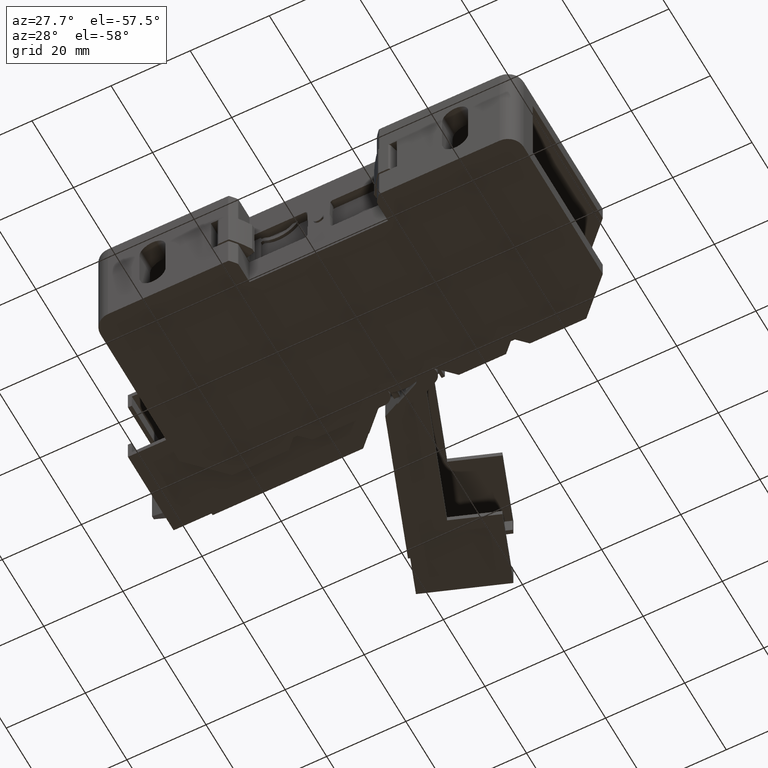
[diagram: clean part render]
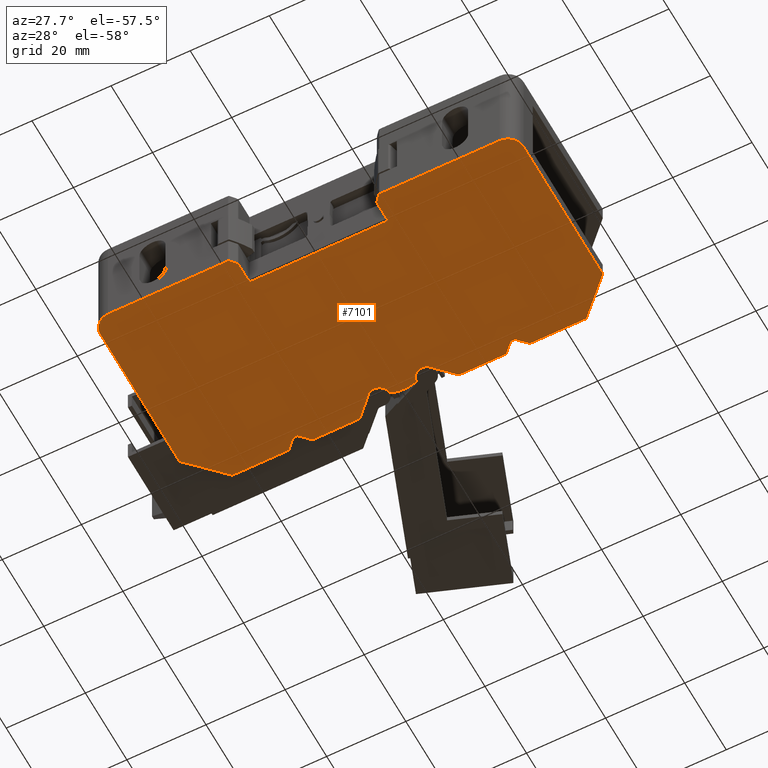
[diagram: same view with one face highlighted and labeled with its STEP entity id]
A machine part, auxiliary view. The second image highlights one B-rep face of the part: STEP entity #7101.
In plain terms, the highlighted planar face has unit normal (-0, 0, -1).
Its self-contained STEP definition (entity closure, byte-faithful):
#1283 = PLANE ( 'NONE',  #2945 ) ;
#1301 = DIRECTION ( 'NONE',  ( -3.797643038629970400E-015, 0.0000000000000000000, -1.000000000000000000 ) ) ;
#1315 = DIRECTION ( 'NONE',  ( -1.000000000000000000, 0.0000000000000000000, 3.797643038629970400E-015 ) ) ;
#1326 = CARTESIAN_POINT ( 'NONE',  ( -53.74999984790740400, 25.69999999999999900, -3.590877595271990200E-013 ) ) ;
#1330 = FACE_OUTER_BOUND ( 'NONE', #11195, .T. ) ;
#1756 = CARTESIAN_POINT ( 'NONE',  ( -43.75000000000002800, 23.00000000000000000, -3.261280134836397300E-013 ) ) ;
#1758 = LINE ( 'NONE', #1756, #3134 ) ;
#1784 = DIRECTION ( 'NONE',  ( -1.000000000000000000, -0.0000000000000000000, 0.0000000000000000000 ) ) ;
#1855 = CARTESIAN_POINT ( 'NONE',  ( 43.75000000000002800, 23.00000000000000000, -4.649058915617843000E-013 ) ) ;
#1866 = LINE ( 'NONE', #1855, #3199 ) ;
#1872 = DIRECTION ( 'NONE',  ( -1.000000000000000000, -0.0000000000000000000, 0.0000000000000000000 ) ) ;
#2233 = EDGE_CURVE ( 'NONE', #13301, #13225, #4823, .T. ) ;
#2241 = EDGE_CURVE ( 'NONE', #13096, #13157, #4816, .T. ) ;
#2248 = EDGE_CURVE ( 'NONE', #13015, #13309, #11643, .T. ) ;
#2250 = EDGE_CURVE ( 'NONE', #12926, #13223, #11648, .T. ) ;
#2256 = EDGE_CURVE ( 'NONE', #13084, #13301, #4803, .T. ) ;
#2258 = EDGE_CURVE ( 'NONE', #13194, #13024, #4810, .T. ) ;
#2262 = EDGE_CURVE ( 'NONE', #13268, #13256, #11688, .T. ) ;
#2266 = EDGE_CURVE ( 'NONE', #13309, #13311, #11721, .T. ) ;
#2274 = EDGE_CURVE ( 'NONE', #13285, #13222, #6229, .T. ) ;
#2280 = EDGE_CURVE ( 'NONE', #13223, #13267, #6254, .T. ) ;
#2282 = EDGE_CURVE ( 'NONE', #13311, #12892, #6248, .T. ) ;
#2288 = EDGE_CURVE ( 'NONE', #13267, #13088, #6268, .T. ) ;
#2292 = EDGE_CURVE ( 'NONE', #12904, #13285, #6289, .T. ) ;
#2426 = EDGE_CURVE ( 'NONE', #13108, #13024, #4623, .T. ) ;
#2436 = EDGE_CURVE ( 'NONE', #13096, #13088, #4645, .T. ) ;
#2446 = EDGE_CURVE ( 'NONE', #13015, #13125, #4705, .T. ) ;
#2456 = EDGE_CURVE ( 'NONE', #13084, #13037, #4708, .T. ) ;
#2479 = EDGE_CURVE ( 'NONE', #13157, #13185, #6190, .T. ) ;
#2540 = EDGE_CURVE ( 'NONE', #13242, #13133, #3905, .T. ) ;
#2945 = AXIS2_PLACEMENT_3D ( 'NONE', #1326, #1301, #1315 ) ;
#3134 = VECTOR ( 'NONE', #1784, 1000.000000000000000 ) ;
#3199 = VECTOR ( 'NONE', #1872, 1000.000000000000000 ) ;
#3905 = LINE ( 'NONE', #3916, #4779 ) ;
#3916 = CARTESIAN_POINT ( 'NONE',  ( 3.175546716161680400, 22.80072382815009700, 7.806255641895631900E-015 ) ) ;
#3917 = DIRECTION ( 'NONE',  ( 0.3420201433256733800, -0.9396926207859066500, 0.0000000000000000000 ) ) ;
#4481 = VECTOR ( 'NONE', #6267, 1000.000000000000100 ) ;
#4623 = CIRCLE ( 'NONE', #4641, 0.5000000000000004400 ) ;
#4641 = AXIS2_PLACEMENT_3D ( 'NONE', #6693, #6695, #6678 ) ;
#4645 = CIRCLE ( 'NONE', #4657, 5.000000000000000000 ) ;
#4657 = AXIS2_PLACEMENT_3D ( 'NONE', #6740, #6713, #6746 ) ;
#4673 = VECTOR ( 'NONE', #6198, 1000.000000000000100 ) ;
#4702 = AXIS2_PLACEMENT_3D ( 'NONE', #6768, #6795, #6769 ) ;
#4705 = CIRCLE ( 'NONE', #4706, 4.999999999999999100 ) ;
#4706 = AXIS2_PLACEMENT_3D ( 'NONE', #6796, #6762, #6777 ) ;
#4708 = CIRCLE ( 'NONE', #4702, 0.5000000000000004400 ) ;
#4779 = VECTOR ( 'NONE', #3917, 1000.000000000000100 ) ;
#4803 = CIRCLE ( 'NONE', #4804, 29.89999999999999900 ) ;
#4804 = AXIS2_PLACEMENT_3D ( 'NONE', #11657, #11658, #11683 ) ;
#4806 = VECTOR ( 'NONE', #11642, 1000.000000000000200 ) ;
#4809 = VECTOR ( 'NONE', #11715, 1000.000000000000000 ) ;
#4810 = CIRCLE ( 'NONE', #4813, 29.90000000000000200 ) ;
#4813 = AXIS2_PLACEMENT_3D ( 'NONE', #11716, #11698, #11691 ) ;
#4816 = CIRCLE ( 'NONE', #4841, 2.549999997955664900 ) ;
#4818 = VECTOR ( 'NONE', #11684, 1000.000000000000000 ) ;
#4823 = CIRCLE ( 'NONE', #4849, 0.5000000000000004400 ) ;
#4836 = VECTOR ( 'NONE', #6239, 1000.000000000000000 ) ;
#4841 = AXIS2_PLACEMENT_3D ( 'NONE', #11597, #11609, #11641 ) ;
#4844 = VECTOR ( 'NONE', #11644, 999.9999999999998900 ) ;
#4849 = AXIS2_PLACEMENT_3D ( 'NONE', #11625, #11618, #11633 ) ;
#4859 = VECTOR ( 'NONE', #6265, 1000.000000000000000 ) ;
#4872 = VECTOR ( 'NONE', #6266, 999.9999999999998900 ) ;
#4873 = VECTOR ( 'NONE', #6241, 1000.000000000000000 ) ;
#6190 = LINE ( 'NONE', #6195, #4673 ) ;
#6195 = CARTESIAN_POINT ( 'NONE',  ( -3.175546716161680400, 22.80072382815009700, -2.732189474663471200E-013 ) ) ;
#6198 = DIRECTION ( 'NONE',  ( 0.3420201433256733800, 0.9396926207859066500, 0.0000000000000000000 ) ) ;
#6229 = LINE ( 'NONE', #6250, #4836 ) ;
#6239 = DIRECTION ( 'NONE',  ( 1.000000000000000000, -0.0000000000000000000, -3.797643038629970400E-015 ) ) ;
#6241 = DIRECTION ( 'NONE',  ( 1.000000000000000000, -0.0000000000000000000, -3.797643038629970400E-015 ) ) ;
#6242 = CARTESIAN_POINT ( 'NONE',  ( 24.46076951545876500, 25.50000000000000400, -6.561043433458807500E-013 ) ) ;
#6246 = CARTESIAN_POINT ( 'NONE',  ( -53.74999984790740400, 25.50000000000259000, -3.590877595271990200E-013 ) ) ;
#6248 = LINE ( 'NONE', #6242, #4859 ) ;
#6250 = CARTESIAN_POINT ( 'NONE',  ( -53.74999984790740400, 25.50000000000000400, -3.590877595271990200E-013 ) ) ;
#6254 = LINE ( 'NONE', #6246, #4873 ) ;
#6262 = CARTESIAN_POINT ( 'NONE',  ( 27.99999999998818700, 23.00000000000000400, -6.695450773575607700E-013 ) ) ;
#6265 = DIRECTION ( 'NONE',  ( 0.7071067811865382500, -0.7071067811865569000, -2.685339145141097400E-015 ) ) ;
#6266 = DIRECTION ( 'NONE',  ( 0.7071067811878506400, -0.7071067811852445000, -2.685339145146091600E-015 ) ) ;
#6267 = DIRECTION ( 'NONE',  ( 0.7071067811882177900, 0.7071067811848772400, -2.685339145147489100E-015 ) ) ;
#6268 = LINE ( 'NONE', #6297, #4872 ) ;
#6289 = LINE ( 'NONE', #6262, #4481 ) ;
#6297 = CARTESIAN_POINT ( 'NONE',  ( -12.53923048383650300, 25.49999999997401900, -5.155915509192481900E-013 ) ) ;
#6678 = DIRECTION ( 'NONE',  ( 1.000000000000000000, 0.0000000000000000000, -3.771137991253908200E-015 ) ) ;
#6693 = CARTESIAN_POINT ( 'NONE',  ( 18.00000015268923200, -23.34465240872928100, -6.314393452555577800E-013 ) ) ;
#6695 = DIRECTION ( 'NONE',  ( 3.771137991253930200E-015, -3.491483361109380100E-015, 1.000000000000000000 ) ) ;
#6713 = DIRECTION ( 'NONE',  ( 0.0000000000000000000, 0.0000000000000000000, 1.000000000000000000 ) ) ;
#6740 = CARTESIAN_POINT ( 'NONE',  ( -11.91669305638946400, 17.80639476065940800, 0.0000000000000000000 ) ) ;
#6746 = DIRECTION ( 'NONE',  ( 1.000000000000000000, 0.0000000000000000000, 0.0000000000000000000 ) ) ;
#6762 = DIRECTION ( 'NONE',  ( 0.0000000000000000000, 0.0000000000000000000, 1.000000000000000000 ) ) ;
#6768 = CARTESIAN_POINT ( 'NONE',  ( -17.99999984731109100, -23.34465241645157000, -4.753142324176451400E-013 ) ) ;
#6769 = DIRECTION ( 'NONE',  ( 1.000000000000000000, 0.0000000000000000000, -3.771137991253908200E-015 ) ) ;
#6777 = DIRECTION ( 'NONE',  ( 1.000000000000000000, 0.0000000000000000000, 0.0000000000000000000 ) ) ;
#6795 = DIRECTION ( 'NONE',  ( 3.771137991253930200E-015, -3.491483361109380100E-015, 1.000000000000000000 ) ) ;
#6796 = CARTESIAN_POINT ( 'NONE',  ( 11.91669305638943900, 17.80639476065940800, 0.0000000000000000000 ) ) ;
#7101 = ADVANCED_FACE ( 'NONE', ( #1330 ), #1283, .T. ) ;
#7257 = EDGE_CURVE ( 'NONE', #12926, #12897, #1758, .T. ) ;
#7293 = EDGE_CURVE ( 'NONE', #12904, #12892, #1866, .T. ) ;
#8228 = CARTESIAN_POINT ( 'NONE',  ( 53.50000000000001400, 16.75000000000000400, -6.151276589667479800E-013 ) ) ;
#8238 = CARTESIAN_POINT ( 'NONE',  ( -18.83545711861587400, -25.13179031345088500, -2.419260700689219800E-013 ) ) ;
#8239 = CARTESIAN_POINT ( 'NONE',  ( 24.46076951545876100, 25.50000000000000400, -6.185778466510178700E-013 ) ) ;
#8270 = CARTESIAN_POINT ( 'NONE',  ( -53.50000000000000000, 16.75000000000000000, -1.778365057689812800E-013 ) ) ;
#8277 = CARTESIAN_POINT ( 'NONE',  ( 30.50000000000000000, 25.50000000000000400, -6.787850830050975900E-013 ) ) ;
#8281 = CARTESIAN_POINT ( 'NONE',  ( -17.49999984731118000, -18.09999952316306000, -5.853871877463205800E-013 ) ) ;
#8282 = CARTESIAN_POINT ( 'NONE',  ( 12.53923048386455700, 25.50000000000000400, -6.107612836031396600E-013 ) ) ;
#8285 = CARTESIAN_POINT ( 'NONE',  ( 17.50000015268919600, -18.09999952316306000, -6.296930231970040000E-013 ) ) ;
#8301 = CARTESIAN_POINT ( 'NONE',  ( -49.50000000000000000, -25.29999999999999000, -1.344410693882025700E-014 ) ) ;
#8318 = CARTESIAN_POINT ( 'NONE',  ( 53.50000000000000000, -21.29999999999999400, -5.416674053737580200E-013 ) ) ;
#8754 = LINE ( 'NONE', #8874, #14484 ) ;
#8799 = CARTESIAN_POINT ( 'NONE',  ( 44.74999999999998600, 25.50000000000000700, -7.331555982546576500E-013 ) ) ;
#8803 = CARTESIAN_POINT ( 'NONE',  ( 6.000000000396700500, 22.49630342184860900, 3.469446951953614200E-015 ) ) ;
#8813 = DIRECTION ( 'NONE',  ( 1.000000000000000000, 0.0000000000000000000, 0.0000000000000000000 ) ) ;
#8862 = LINE ( 'NONE', #8799, #14558 ) ;
#8868 = DIRECTION ( 'NONE',  ( 0.7071067811865451300, -0.7071067811865500200, -2.685339145141143100E-015 ) ) ;
#8870 = DIRECTION ( 'NONE',  ( 0.7071067811865487900, -0.7071067811865463500, -2.685339145141150600E-015 ) ) ;
#8874 = CARTESIAN_POINT ( 'NONE',  ( -30.49999999999999300, 25.50000000000000700, -4.473829595977524600E-013 ) ) ;
#8886 = DIRECTION ( 'NONE',  ( 0.0000000000000000000, 0.0000000000000000000, 1.000000000000000000 ) ) ;
#8904 = CARTESIAN_POINT ( 'NONE',  ( -53.50000000000000000, 16.75000000000000000, -3.600371697092631200E-013 ) ) ;
#8948 = CARTESIAN_POINT ( 'NONE',  ( 19.20950981694255700, -24.79999999999999000, -6.366435156834882000E-013 ) ) ;
#8957 = DIRECTION ( 'NONE',  ( 1.000000000000000000, 0.0000000000000000000, -3.771137991253908200E-015 ) ) ;
#8966 = DIRECTION ( 'NONE',  ( -3.771137991253930200E-015, 3.491483361109380100E-015, -1.000000000000000000 ) ) ;
#8987 = LINE ( 'NONE', #8904, #14560 ) ;
#8991 = DIRECTION ( 'NONE',  ( 0.7071067811865476800, 0.7071067811865474600, -2.685339145141138400E-015 ) ) ;
#9012 = LINE ( 'NONE', #9032, #14550 ) ;
#9023 = DIRECTION ( 'NONE',  ( -0.0000000000000000000, -1.000000000000000000, -0.0000000000000000000 ) ) ;
#9032 = CARTESIAN_POINT ( 'NONE',  ( 17.50000015268919600, 25.69999999999999900, -6.296698260318500400E-013 ) ) ;
#9045 = DIRECTION ( 'NONE',  ( 0.0000000000000000000, 1.000000000000000000, 0.0000000000000000000 ) ) ;
#9054 = LINE ( 'NONE', #9060, #14573 ) ;
#9060 = CARTESIAN_POINT ( 'NONE',  ( -17.49999984731118000, 25.69999999999999900, -4.967523196797996800E-013 ) ) ;
#9336 = CARTESIAN_POINT ( 'NONE',  ( 3.015162436188435300, 22.19506481017515000, 6.938893903907228400E-015 ) ) ;
#9362 = DIRECTION ( 'NONE',  ( 1.000000000000000000, 6.938893903907228400E-014, 0.0000000000000000000 ) ) ;
#9421 = DIRECTION ( 'NONE',  ( -0.0000000000000000000, -0.0000000000000000000, -1.000000000000000000 ) ) ;
#9484 = DIRECTION ( 'NONE',  ( 1.000000000000000000, 4.163336342344337000E-014, 0.0000000000000000000 ) ) ;
#9499 = DIRECTION ( 'NONE',  ( -0.0000000000000000000, -0.0000000000000000000, -1.000000000000000000 ) ) ;
#9531 = CARTESIAN_POINT ( 'NONE',  ( -3.015162436188435300, 22.19506481017515000, 3.469446951953614200E-015 ) ) ;
#9644 = CARTESIAN_POINT ( 'NONE',  ( 49.50000000000000000, -21.29999999999999000, -5.438358097187290200E-013 ) ) ;
#9663 = CARTESIAN_POINT ( 'NONE',  ( 22.15000015208890000, -25.29999999999999000, -6.362098348144940000E-013 ) ) ;
#9671 = DIRECTION ( 'NONE',  ( 1.000000000000000000, -1.325940748080940300E-029, -4.629500059741527000E-044 ) ) ;
#9679 = LINE ( 'NONE', #9738, #14710 ) ;
#9693 = DIRECTION ( 'NONE',  ( 1.000000000000000000, -1.325940748080940300E-029, -4.629500059741527000E-044 ) ) ;
#9697 = DIRECTION ( 'NONE',  ( -5.768341097617960000E-031, -3.469446951953615000E-015, 1.000000000000000000 ) ) ;
#9708 = DIRECTION ( 'NONE',  ( 0.0000000000000000000, 1.000000000000000000, 3.469446951953614200E-015 ) ) ;
#9732 = LINE ( 'NONE', #9663, #14704 ) ;
#9738 = CARTESIAN_POINT ( 'NONE',  ( -22.14999984791530000, -25.29999999999999000, -1.301042606982605300E-014 ) ) ;
#9743 = DIRECTION ( 'NONE',  ( 0.0000000000000000000, 1.000000000000000000, 0.0000000000000000000 ) ) ;
#9771 = LINE ( 'NONE', #9811, #14722 ) ;
#9793 = CARTESIAN_POINT ( 'NONE',  ( -17.74999984731109800, -18.09999952316306000, -6.297046217795809800E-013 ) ) ;
#9798 = DIRECTION ( 'NONE',  ( -1.000000000000000000, -8.512549969726455200E-044, 2.972142657991207600E-058 ) ) ;
#9808 = LINE ( 'NONE', #9793, #14717 ) ;
#9811 = CARTESIAN_POINT ( 'NONE',  ( -53.50000000000000000, -25.50000000000000400, 0.0000000000000000000 ) ) ;
#9829 = CARTESIAN_POINT ( 'NONE',  ( -3.385912357199004800E-006, 13.18624602514384500, 5.204170427930421300E-015 ) ) ;
#9843 = DIRECTION ( 'NONE',  ( 1.000000000000000000, 0.0000000000000000000, 0.0000000000000000000 ) ) ;
#9849 = CARTESIAN_POINT ( 'NONE',  ( 53.50000000000000000, -25.50000000000000400, -5.394990010287870100E-013 ) ) ;
#9855 = CARTESIAN_POINT ( 'NONE',  ( -49.50000000000000000, -21.29999999999999000, 0.0000000000000000000 ) ) ;
#9868 = DIRECTION ( 'NONE',  ( 0.0000000000000000000, -1.000000000000000000, -3.469446951953615000E-015 ) ) ;
#9869 = DIRECTION ( 'NONE',  ( -1.652117596168390000E-016, -1.000000000000000000, 0.0000000000000000000 ) ) ;
#9875 = LINE ( 'NONE', #9849, #14687 ) ;
#9883 = DIRECTION ( 'NONE',  ( 0.0000000000000000000, 0.0000000000000000000, 1.000000000000000000 ) ) ;
#9887 = DIRECTION ( 'NONE',  ( 0.0000000000000000000, -3.469446951953615000E-015, 1.000000000000000000 ) ) ;
#10651 = ORIENTED_EDGE ( 'NONE', *, *, #2262, .T. ) ;
#10653 = ORIENTED_EDGE ( 'NONE', *, *, #2456, .F. ) ;
#10657 = ORIENTED_EDGE ( 'NONE', *, *, #7257, .F. ) ;
#10658 = ORIENTED_EDGE ( 'NONE', *, *, #2436, .F. ) ;
#10667 = ORIENTED_EDGE ( 'NONE', *, *, #15072, .T. ) ;
#10670 = ORIENTED_EDGE ( 'NONE', *, *, #15055, .F. ) ;
#10671 = ORIENTED_EDGE ( 'NONE', *, *, #2266, .T. ) ;
#10673 = ORIENTED_EDGE ( 'NONE', *, *, #2258, .T. ) ;
#10675 = ORIENTED_EDGE ( 'NONE', *, *, #2250, .T. ) ;
#10677 = ORIENTED_EDGE ( 'NONE', *, *, #2280, .T. ) ;
#10678 = ORIENTED_EDGE ( 'NONE', *, *, #2479, .T. ) ;
#10681 = ORIENTED_EDGE ( 'NONE', *, *, #14952, .T. ) ;
#10683 = ORIENTED_EDGE ( 'NONE', *, *, #2292, .T. ) ;
#10684 = ORIENTED_EDGE ( 'NONE', *, *, #15047, .F. ) ;
#10685 = ORIENTED_EDGE ( 'NONE', *, *, #15074, .F. ) ;
#10686 = ORIENTED_EDGE ( 'NONE', *, *, #14934, .T. ) ;
#10689 = ORIENTED_EDGE ( 'NONE', *, *, #2233, .T. ) ;
#10691 = ORIENTED_EDGE ( 'NONE', *, *, #2256, .T. ) ;
#10692 = ORIENTED_EDGE ( 'NONE', *, *, #15025, .T. ) ;
#10693 = ORIENTED_EDGE ( 'NONE', *, *, #2248, .T. ) ;
#10696 = ORIENTED_EDGE ( 'NONE', *, *, #14924, .T. ) ;
#10702 = ORIENTED_EDGE ( 'NONE', *, *, #2274, .T. ) ;
#10703 = ORIENTED_EDGE ( 'NONE', *, *, #14950, .T. ) ;
#10706 = ORIENTED_EDGE ( 'NONE', *, *, #2446, .F. ) ;
#10707 = ORIENTED_EDGE ( 'NONE', *, *, #15081, .T. ) ;
#10718 = ORIENTED_EDGE ( 'NONE', *, *, #7293, .F. ) ;
#10722 = ORIENTED_EDGE ( 'NONE', *, *, #2426, .F. ) ;
#10723 = ORIENTED_EDGE ( 'NONE', *, *, #15052, .F. ) ;
#10728 = ORIENTED_EDGE ( 'NONE', *, *, #15080, .F. ) ;
#10729 = ORIENTED_EDGE ( 'NONE', *, *, #15066, .T. ) ;
#10730 = ORIENTED_EDGE ( 'NONE', *, *, #2288, .T. ) ;
#10731 = ORIENTED_EDGE ( 'NONE', *, *, #2282, .T. ) ;
#10735 = ORIENTED_EDGE ( 'NONE', *, *, #2540, .T. ) ;
#10740 = ORIENTED_EDGE ( 'NONE', *, *, #14940, .T. ) ;
#10746 = ORIENTED_EDGE ( 'NONE', *, *, #14959, .T. ) ;
#10758 = ORIENTED_EDGE ( 'NONE', *, *, #14926, .T. ) ;
#10759 = ORIENTED_EDGE ( 'NONE', *, *, #2241, .T. ) ;
#10775 = ORIENTED_EDGE ( 'NONE', *, *, #15010, .T. ) ;
#11195 = EDGE_LOOP ( 'NONE', ( #10746, #10667, #10681, #10653, #10691, #10689, #10684, #10728, #10729, #10740, #10651, #10696, #10657, #10675, #10677, #10730, #10658, #10759, #10678, #10692, #10685, #10775, #10735, #10758, #10706, #10693, #10671, #10731, #10718, #10683, #10702, #10686, #10707, #10670, #10723, #10703, #10673, #10722 ) ) ;
#11597 = CARTESIAN_POINT ( 'NONE',  ( -6.000000000396700500, 22.49630342184860900, 0.0000000000000000000 ) ) ;
#11609 = DIRECTION ( 'NONE',  ( 0.0000000000000000000, 0.0000000000000000000, 1.000000000000000000 ) ) ;
#11618 = DIRECTION ( 'NONE',  ( -3.771137991253930200E-015, 3.491483361109380100E-015, -1.000000000000000000 ) ) ;
#11625 = CARTESIAN_POINT ( 'NONE',  ( -19.20950950518780700, -24.79999999999999000, -1.040834085586084300E-014 ) ) ;
#11633 = DIRECTION ( 'NONE',  ( 1.000000000000000000, 6.938893903907222100E-015, -3.771137991253901900E-015 ) ) ;
#11641 = DIRECTION ( 'NONE',  ( 1.000000000000000000, 0.0000000000000000000, 0.0000000000000000000 ) ) ;
#11642 = DIRECTION ( 'NONE',  ( 0.7071067811869424800, 0.7071067811861525600, -2.685339145142638400E-015 ) ) ;
#11643 = LINE ( 'NONE', #11659, #4844 ) ;
#11644 = DIRECTION ( 'NONE',  ( 0.7071067811880261700, 0.7071067811850689800, -2.685339145146741300E-015 ) ) ;
#11648 = LINE ( 'NONE', #11674, #4806 ) ;
#11657 = CARTESIAN_POINT ( 'NONE',  ( -41.20378983561742800, -5.290729569087488000, -3.243932900076629300E-013 ) ) ;
#11658 = DIRECTION ( 'NONE',  ( -3.771137991253930200E-015, 3.491483361109380100E-015, -1.000000000000000000 ) ) ;
#11659 = CARTESIAN_POINT ( 'NONE',  ( 8.381159148247634900, 21.34192866440047000, -5.950397229709590800E-013 ) ) ;
#11674 = CARTESIAN_POINT ( 'NONE',  ( -26.96076951544147700, 23.00000000000000400, -4.608236936095431400E-013 ) ) ;
#11683 = DIRECTION ( 'NONE',  ( 1.000000000000000000, 0.0000000000000000000, -3.771137991253930200E-015 ) ) ;
#11684 = DIRECTION ( 'NONE',  ( 1.000000000000000000, -0.0000000000000000000, -3.797643038629970400E-015 ) ) ;
#11688 = LINE ( 'NONE', #11701, #4809 ) ;
#11691 = DIRECTION ( 'NONE',  ( 1.000000000000000000, -1.688309469930604600E-014, -3.771137991253987800E-015 ) ) ;
#11698 = DIRECTION ( 'NONE',  ( -3.771137991253930200E-015, 3.491483361109380100E-015, -1.000000000000000000 ) ) ;
#11701 = CARTESIAN_POINT ( 'NONE',  ( -53.74999984790740400, 25.50000000000000400, -3.590877595271990200E-013 ) ) ;
#11706 = CARTESIAN_POINT ( 'NONE',  ( -53.74999984790740400, 25.50000000000000400, -3.590877595271990200E-013 ) ) ;
#11715 = DIRECTION ( 'NONE',  ( 1.000000000000000000, -0.0000000000000000000, -3.797643038629970400E-015 ) ) ;
#11716 = CARTESIAN_POINT ( 'NONE',  ( 41.20379014437452300, -5.290729565708008200, -6.522560269672794700E-013 ) ) ;
#11721 = LINE ( 'NONE', #11706, #4818 ) ;
#12089 = VERTEX_POINT ( 'NONE', #14066 ) ;
#12095 = VERTEX_POINT ( 'NONE', #14087 ) ;
#12096 = VERTEX_POINT ( 'NONE', #14067 ) ;
#12106 = VERTEX_POINT ( 'NONE', #14055 ) ;
#12892 = VERTEX_POINT ( 'NONE', #14148 ) ;
#12897 = VERTEX_POINT ( 'NONE', #14154 ) ;
#12904 = VERTEX_POINT ( 'NONE', #14144 ) ;
#12926 = VERTEX_POINT ( 'NONE', #14134 ) ;
#13015 = VERTEX_POINT ( 'NONE', #14224 ) ;
#13024 = VERTEX_POINT ( 'NONE', #14244 ) ;
#13037 = VERTEX_POINT ( 'NONE', #14248 ) ;
#13084 = VERTEX_POINT ( 'NONE', #14341 ) ;
#13088 = VERTEX_POINT ( 'NONE', #14303 ) ;
#13096 = VERTEX_POINT ( 'NONE', #14331 ) ;
#13108 = VERTEX_POINT ( 'NONE', #14350 ) ;
#13125 = VERTEX_POINT ( 'NONE', #14328 ) ;
#13133 = VERTEX_POINT ( 'NONE', #14340 ) ;
#13157 = VERTEX_POINT ( 'NONE', #14399 ) ;
#13185 = VERTEX_POINT ( 'NONE', #14380 ) ;
#13194 = VERTEX_POINT ( 'NONE', #14395 ) ;
#13222 = VERTEX_POINT ( 'NONE', #14436 ) ;
#13223 = VERTEX_POINT ( 'NONE', #14454 ) ;
#13225 = VERTEX_POINT ( 'NONE', #14447 ) ;
#13242 = VERTEX_POINT ( 'NONE', #14465 ) ;
#13256 = VERTEX_POINT ( 'NONE', #14434 ) ;
#13257 = VERTEX_POINT ( 'NONE', #14448 ) ;
#13267 = VERTEX_POINT ( 'NONE', #14440 ) ;
#13268 = VERTEX_POINT ( 'NONE', #14455 ) ;
#13285 = VERTEX_POINT ( 'NONE', #8277 ) ;
#13287 = VERTEX_POINT ( 'NONE', #8270 ) ;
#13294 = VERTEX_POINT ( 'NONE', #8228 ) ;
#13301 = VERTEX_POINT ( 'NONE', #8238 ) ;
#13304 = VERTEX_POINT ( 'NONE', #8281 ) ;
#13309 = VERTEX_POINT ( 'NONE', #8282 ) ;
#13311 = VERTEX_POINT ( 'NONE', #8239 ) ;
#13316 = VERTEX_POINT ( 'NONE', #8285 ) ;
#13340 = VERTEX_POINT ( 'NONE', #8301 ) ;
#13341 = VERTEX_POINT ( 'NONE', #8318 ) ;
#14055 = CARTESIAN_POINT ( 'NONE',  ( 3.173854995963758100, 22.66921204135307000, 6.117182773379701000E-015 ) ) ;
#14066 = CARTESIAN_POINT ( 'NONE',  ( -53.50000000000000700, -21.29999999999998600, 0.0000000000000000000 ) ) ;
#14067 = CARTESIAN_POINT ( 'NONE',  ( 49.50000000000000000, -25.29999999999999000, -5.969617161705187400E-013 ) ) ;
#14087 = CARTESIAN_POINT ( 'NONE',  ( -3.173855017781920900, 22.66921316728208400, 4.291158072153152900E-015 ) ) ;
#14134 = CARTESIAN_POINT ( 'NONE',  ( -26.96076951543985300, 22.99999999999999600, -3.710265735256075400E-013 ) ) ;
#14144 = CARTESIAN_POINT ( 'NONE',  ( 27.99999999998556900, 23.00000000000000400, -5.331189534937097600E-013 ) ) ;
#14148 = CARTESIAN_POINT ( 'NONE',  ( 26.96076951545870100, 23.00000000000000400, -5.318034113553413400E-013 ) ) ;
#14154 = CARTESIAN_POINT ( 'NONE',  ( -28.00000000000000000, 23.00000000000000000, -3.261280134836397300E-013 ) ) ;
#14224 = CARTESIAN_POINT ( 'NONE',  ( 8.381159148104615000, 21.34192866424875800, 0.0000000000000000000 ) ) ;
#14244 = CARTESIAN_POINT ( 'NONE',  ( 17.60537787391907100, -23.65169191286229400, -6.295276091799915400E-013 ) ) ;
#14248 = CARTESIAN_POINT ( 'NONE',  ( -17.49999984731118000, -23.34465241645156700, -4.867452863991026000E-013 ) ) ;
#14303 = CARTESIAN_POINT ( 'NONE',  ( -8.381159150480913300, 21.34192866662505800, 0.0000000000000000000 ) ) ;
#14328 = CARTESIAN_POINT ( 'NONE',  ( 7.998353283147834800, 20.91229453712239200, 1.148823494335449300E-015 ) ) ;
#14331 = CARTESIAN_POINT ( 'NONE',  ( -7.998353283147845400, 20.91229453712239200, 0.0000000000000000000 ) ) ;
#14340 = CARTESIAN_POINT ( 'NONE',  ( 3.603783819313681300, 21.62415205706734500, 3.469446951953614200E-015 ) ) ;
#14341 = CARTESIAN_POINT ( 'NONE',  ( -17.60537756859839600, -23.65169192065844000, -4.774649355026571900E-013 ) ) ;
#14350 = CARTESIAN_POINT ( 'NONE',  ( 17.50000015268919600, -23.34465240872929600, -6.296291990197557900E-013 ) ) ;
#14380 = CARTESIAN_POINT ( 'NONE',  ( -3.232008933683780100, 22.64559516045579100, -1.346579098226996500E-013 ) ) ;
#14395 = CARTESIAN_POINT ( 'NONE',  ( 18.83545743042160600, -25.13179031350835800, -6.365107562337960800E-013 ) ) ;
#14399 = CARTESIAN_POINT ( 'NONE',  ( -3.603783819313683100, 21.62415205706734500, -1.366094737331735600E-013 ) ) ;
#14434 = CARTESIAN_POINT ( 'NONE',  ( -30.49999999999999300, 25.50000000000000700, -4.069655712499924000E-013 ) ) ;
#14436 = CARTESIAN_POINT ( 'NONE',  ( 44.75000000000000700, 25.50000000000000000, -7.333664089491683700E-013 ) ) ;
#14440 = CARTESIAN_POINT ( 'NONE',  ( -12.53923048383313000, 25.49999999996995800, -5.155014648068798100E-013 ) ) ;
#14447 = CARTESIAN_POINT ( 'NONE',  ( -19.20950950518780700, -25.29999999999999000, -1.257674520083185100E-014 ) ) ;
#14448 = CARTESIAN_POINT ( 'NONE',  ( 19.20950981694257500, -25.29999999999999000, -6.372995460892684500E-013 ) ) ;
#14454 = CARTESIAN_POINT ( 'NONE',  ( -24.46076951543793500, 25.50000000000173000, -4.702485548006638700E-013 ) ) ;
#14455 = CARTESIAN_POINT ( 'NONE',  ( -44.74999999999999300, 25.50000000000000400, -3.934384405470953700E-013 ) ) ;
#14465 = CARTESIAN_POINT ( 'NONE',  ( 3.232008933683780900, 22.64559516045579100, 6.938893903907228400E-015 ) ) ;
#14484 = VECTOR ( 'NONE', #8868, 1000.000000000000100 ) ;
#14502 = CIRCLE ( 'NONE', #14503, 2.549999997955664900 ) ;
#14503 = AXIS2_PLACEMENT_3D ( 'NONE', #8803, #8886, #8813 ) ;
#14550 = VECTOR ( 'NONE', #9045, 1000.000000000000000 ) ;
#14558 = VECTOR ( 'NONE', #8870, 1000.000000000000000 ) ;
#14560 = VECTOR ( 'NONE', #8991, 1000.000000000000000 ) ;
#14573 = VECTOR ( 'NONE', #9023, 1000.000000000000000 ) ;
#14582 = AXIS2_PLACEMENT_3D ( 'NONE', #8948, #8966, #8957 ) ;
#14595 = CIRCLE ( 'NONE', #14582, 0.5000000000000004400 ) ;
#14618 = CIRCLE ( 'NONE', #14663, 0.5000000000000000000 ) ;
#14619 = CIRCLE ( 'NONE', #14625, 0.5000000000000000000 ) ;
#14625 = AXIS2_PLACEMENT_3D ( 'NONE', #9336, #9421, #9362 ) ;
#14663 = AXIS2_PLACEMENT_3D ( 'NONE', #9531, #9499, #9484 ) ;
#14670 = CIRCLE ( 'NONE', #14692, 9.999999999999740700 ) ;
#14677 = AXIS2_PLACEMENT_3D ( 'NONE', #9855, #9887, #9868 ) ;
#14687 = VECTOR ( 'NONE', #9869, 1000.000000000000000 ) ;
#14692 = AXIS2_PLACEMENT_3D ( 'NONE', #9829, #9883, #9843 ) ;
#14704 = VECTOR ( 'NONE', #9693, 1000.000000000000000 ) ;
#14705 = CIRCLE ( 'NONE', #14723, 4.000000000000000000 ) ;
#14706 = CIRCLE ( 'NONE', #14677, 4.000000000000000000 ) ;
#14710 = VECTOR ( 'NONE', #9671, 1000.000000000000000 ) ;
#14717 = VECTOR ( 'NONE', #9798, 1000.000000000000000 ) ;
#14722 = VECTOR ( 'NONE', #9743, 1000.000000000000000 ) ;
#14723 = AXIS2_PLACEMENT_3D ( 'NONE', #9644, #9697, #9708 ) ;
#14924 = EDGE_CURVE ( 'NONE', #13256, #12897, #8754, .T. ) ;
#14926 = EDGE_CURVE ( 'NONE', #13133, #13125, #14502, .T. ) ;
#14934 = EDGE_CURVE ( 'NONE', #13222, #13294, #8862, .T. ) ;
#14940 = EDGE_CURVE ( 'NONE', #13287, #13268, #8987, .T. ) ;
#14950 = EDGE_CURVE ( 'NONE', #13257, #13194, #14595, .T. ) ;
#14952 = EDGE_CURVE ( 'NONE', #13304, #13037, #9054, .T. ) ;
#14959 = EDGE_CURVE ( 'NONE', #13108, #13316, #9012, .T. ) ;
#15010 = EDGE_CURVE ( 'NONE', #12106, #13242, #14619, .T. ) ;
#15025 = EDGE_CURVE ( 'NONE', #13185, #12095, #14618, .T. ) ;
#15047 = EDGE_CURVE ( 'NONE', #13340, #13225, #9679, .T. ) ;
#15052 = EDGE_CURVE ( 'NONE', #13257, #12096, #9732, .T. ) ;
#15055 = EDGE_CURVE ( 'NONE', #12096, #13341, #14705, .T. ) ;
#15066 = EDGE_CURVE ( 'NONE', #12089, #13287, #9771, .T. ) ;
#15072 = EDGE_CURVE ( 'NONE', #13316, #13304, #9808, .T. ) ;
#15074 = EDGE_CURVE ( 'NONE', #12106, #12095, #14670, .T. ) ;
#15080 = EDGE_CURVE ( 'NONE', #12089, #13340, #14706, .T. ) ;
#15081 = EDGE_CURVE ( 'NONE', #13294, #13341, #9875, .T. ) ;